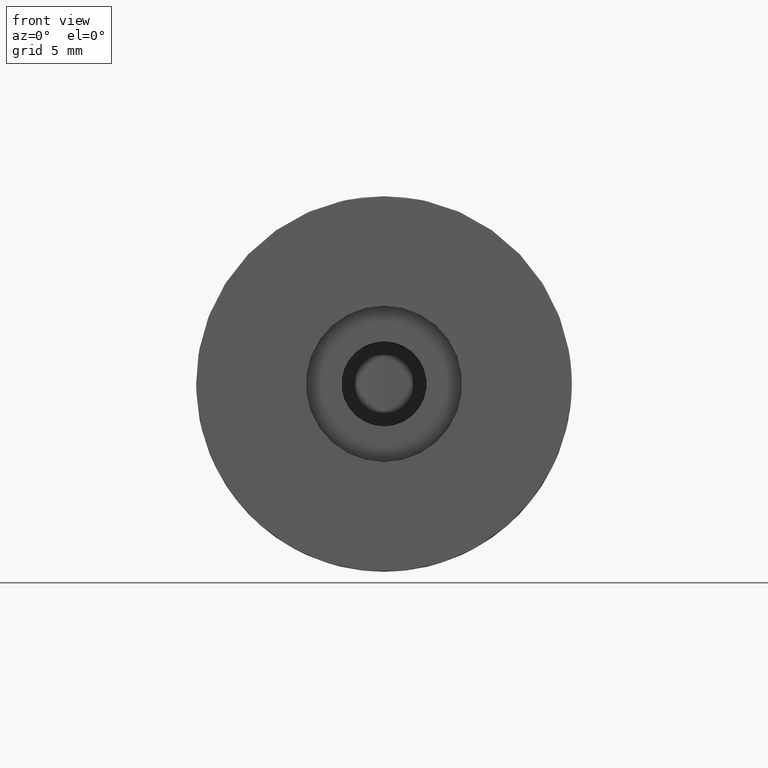
[diagram: clean part render]
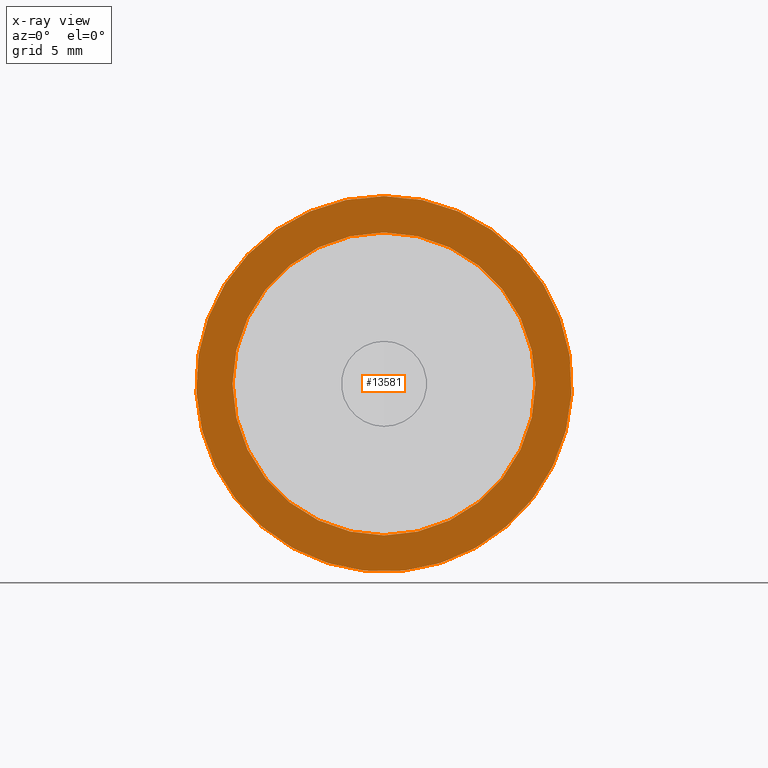
[diagram: x-ray — body ghosted, one internal face saturated and labeled with its STEP entity id]
A machine part, front view, then the same camera in x-ray: the body is ghosted and one INTERNAL B-rep face — a face not visible from any outside direction — is saturated and labeled: STEP entity #13581.
In plain terms, the highlighted planar face has unit normal (0, -1, 0).
Its self-contained STEP definition (entity closure, byte-faithful):
#710 = AXIS2_PLACEMENT_3D ( 'NONE', #5055, #10126, #11290 ) ;
#874 = AXIS2_PLACEMENT_3D ( 'NONE', #15798, #2987, #10753 ) ;
#1149 = CIRCLE ( 'NONE', #16291, 15.00000000000014000 ) ;
#2015 = DIRECTION ( 'NONE',  ( 7.395570986446916700E-032, 0.0000000000000000000, 1.000000000000000000 ) ) ;
#2987 = DIRECTION ( 'NONE',  ( 0.0000000000000000000, 1.000000000000000000, 0.0000000000000000000 ) ) ;
#3796 = PLANE ( 'NONE',  #710 ) ;
#4156 = EDGE_LOOP ( 'NONE', ( #8535 ) ) ;
#5055 = CARTESIAN_POINT ( 'NONE',  ( 0.0000000000000000000, 12.52999999999999900, 0.0000000000000000000 ) ) ;
#5282 = CARTESIAN_POINT ( 'NONE',  ( 8.948640893600852000E-031, 12.52999999999999900, 12.10000000000011200 ) ) ;
#5883 = DIRECTION ( 'NONE',  ( 0.0000000000000000000, 1.000000000000000000, 0.0000000000000000000 ) ) ;
#6318 = VERTEX_POINT ( 'NONE', #14281 ) ;
#8535 = ORIENTED_EDGE ( 'NONE', *, *, #15363, .T. ) ;
#9078 = FACE_BOUND ( 'NONE', #14076, .T. ) ;
#10012 = EDGE_CURVE ( 'NONE', #15786, #15786, #15112, .T. ) ;
#10126 = DIRECTION ( 'NONE',  ( -0.0000000000000000000, 1.000000000000000000, 0.0000000000000000000 ) ) ;
#10753 = DIRECTION ( 'NONE',  ( 7.395570986446916700E-032, 0.0000000000000000000, 1.000000000000000000 ) ) ;
#11290 = DIRECTION ( 'NONE',  ( 7.395570986446916700E-032, 0.0000000000000000000, 1.000000000000000000 ) ) ;
#13581 = ADVANCED_FACE ( 'NONE', ( #14105, #9078 ), #3796, .T. ) ;
#14076 = EDGE_LOOP ( 'NONE', ( #16357 ) ) ;
#14105 = FACE_OUTER_BOUND ( 'NONE', #4156, .T. ) ;
#14281 = CARTESIAN_POINT ( 'NONE',  ( 1.109335647967047900E-030, 12.52999999999999900, 15.00000000000014000 ) ) ;
#14587 = CARTESIAN_POINT ( 'NONE',  ( 0.0000000000000000000, 12.52999999999999900, 0.0000000000000000000 ) ) ;
#15112 = CIRCLE ( 'NONE', #874, 12.10000000000011200 ) ;
#15363 = EDGE_CURVE ( 'NONE', #6318, #6318, #1149, .T. ) ;
#15786 = VERTEX_POINT ( 'NONE', #5282 ) ;
#15798 = CARTESIAN_POINT ( 'NONE',  ( 0.0000000000000000000, 12.52999999999999900, 0.0000000000000000000 ) ) ;
#16291 = AXIS2_PLACEMENT_3D ( 'NONE', #14587, #5883, #2015 ) ;
#16357 = ORIENTED_EDGE ( 'NONE', *, *, #10012, .F. ) ;